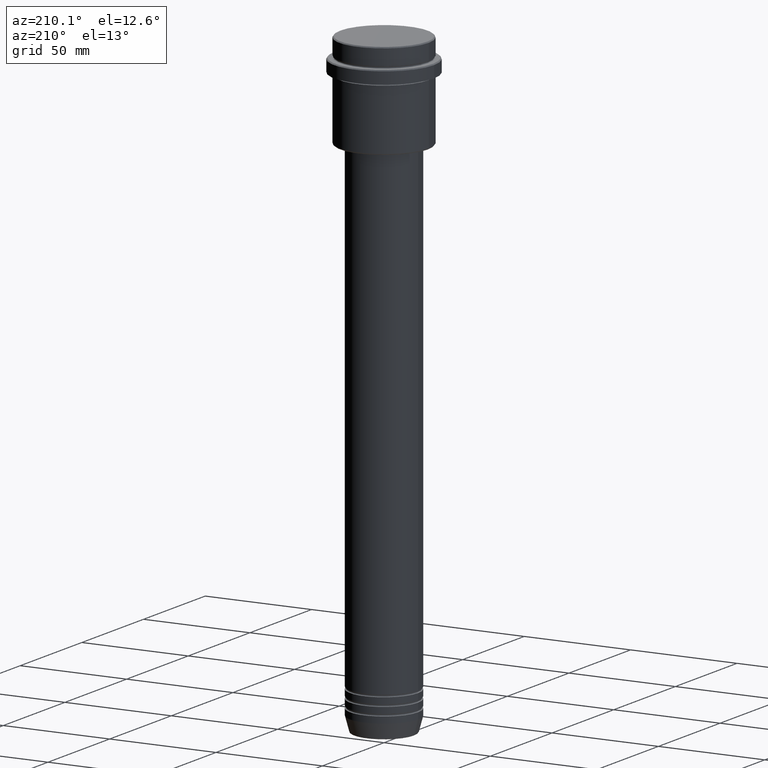
[diagram: clean part render]
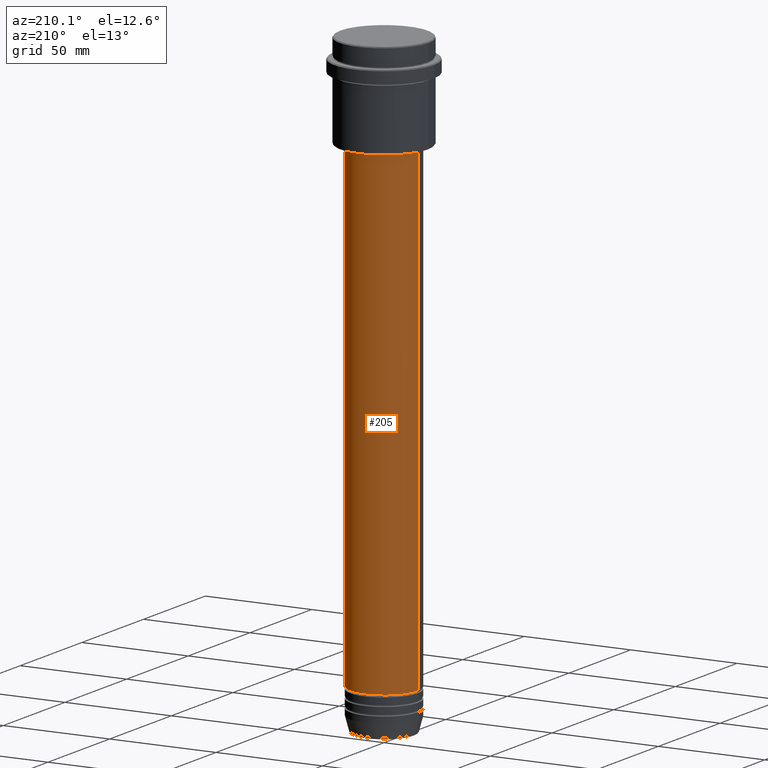
[diagram: same view with one face highlighted and labeled with its STEP entity id]
A machine part, auxiliary view. The second image highlights one B-rep face of the part: STEP entity #205.
In plain terms, the highlighted cylindrical surface (partial cylindrical patch) has radius 16 mm, axis along (-0, -0, 1).
Its self-contained STEP definition (entity closure, byte-faithful):
#28 = CARTESIAN_POINT ( 'NONE',  ( -16.00000000000000000, 1.959434878635765131E-15, -270.9999999999998863 ) ) ;
#30 = EDGE_CURVE ( 'NONE', #1137, #37, #1385, .T. ) ;
#37 = VERTEX_POINT ( 'NONE', #1048 ) ;
#49 = DIRECTION ( 'NONE',  ( 1.000000000000000000, 0.000000000000000000, 0.000000000000000000 ) ) ;
#175 = EDGE_CURVE ( 'NONE', #1367, #675, #796, .T. ) ;
#205 = ADVANCED_FACE ( 'NONE', ( #432 ), #589, .T. ) ;
#217 = CARTESIAN_POINT ( 'NONE',  ( 16.00000000000000000, 0.000000000000000000, -270.9999999999998863 ) ) ;
#236 = VECTOR ( 'NONE', #1406, 1000.000000000000000 ) ;
#237 = CIRCLE ( 'NONE', #280, 16.00000000000000355 ) ;
#258 = DIRECTION ( 'NONE',  ( -0.000000000000000000, -0.000000000000000000, 1.000000000000000000 ) ) ;
#280 = AXIS2_PLACEMENT_3D ( 'NONE', #762, #430, #1206 ) ;
#286 = CIRCLE ( 'NONE', #726, 16.00000000000000000 ) ;
#426 = CARTESIAN_POINT ( 'NONE',  ( 0.000000000000000000, 0.000000000000000000, -270.9999999999998863 ) ) ;
#430 = DIRECTION ( 'NONE',  ( -0.000000000000000000, -0.000000000000000000, 1.000000000000000000 ) ) ;
#432 = FACE_OUTER_BOUND ( 'NONE', #698, .T. ) ;
#446 = EDGE_CURVE ( 'NONE', #675, #37, #237, .T. ) ;
#524 = CARTESIAN_POINT ( 'NONE',  ( -16.00000000000000000, 1.959434878635765131E-15, 0.000000000000000000 ) ) ;
#541 = CARTESIAN_POINT ( 'NONE',  ( 16.00000000000000000, 0.000000000000000000, 0.000000000000000000 ) ) ;
#542 = DIRECTION ( 'NONE',  ( 1.000000000000000000, 0.000000000000000000, 0.000000000000000000 ) ) ;
#589 = CYLINDRICAL_SURFACE ( 'NONE', #1401, 16.00000000000000000 ) ;
#675 = VERTEX_POINT ( 'NONE', #795 ) ;
#698 = EDGE_LOOP ( 'NONE', ( #1277, #1114, #1210, #1136 ) ) ;
#726 = AXIS2_PLACEMENT_3D ( 'NONE', #426, #758, #542 ) ;
#758 = DIRECTION ( 'NONE',  ( -0.000000000000000000, -0.000000000000000000, 1.000000000000000000 ) ) ;
#762 = CARTESIAN_POINT ( 'NONE',  ( 0.000000000000000000, 0.000000000000000000, -46.00000000000009948 ) ) ;
#764 = DIRECTION ( 'NONE',  ( -0.000000000000000000, -0.000000000000000000, 1.000000000000000000 ) ) ;
#795 = CARTESIAN_POINT ( 'NONE',  ( 16.00000000000000355, 0.000000000000000000, -46.00000000000009948 ) ) ;
#796 = LINE ( 'NONE', #541, #1334 ) ;
#1048 = CARTESIAN_POINT ( 'NONE',  ( -16.00000000000000355, 1.959434878635765526E-15, -46.00000000000009948 ) ) ;
#1114 = ORIENTED_EDGE ( 'NONE', *, *, #30, .T. ) ;
#1125 = CARTESIAN_POINT ( 'NONE',  ( 0.000000000000000000, 0.000000000000000000, 0.000000000000000000 ) ) ;
#1136 = ORIENTED_EDGE ( 'NONE', *, *, #175, .F. ) ;
#1137 = VERTEX_POINT ( 'NONE', #28 ) ;
#1206 = DIRECTION ( 'NONE',  ( 1.000000000000000000, 0.000000000000000000, 0.000000000000000000 ) ) ;
#1210 = ORIENTED_EDGE ( 'NONE', *, *, #446, .F. ) ;
#1277 = ORIENTED_EDGE ( 'NONE', *, *, #1366, .T. ) ;
#1334 = VECTOR ( 'NONE', #258, 1000.000000000000000 ) ;
#1366 = EDGE_CURVE ( 'NONE', #1367, #1137, #286, .T. ) ;
#1367 = VERTEX_POINT ( 'NONE', #217 ) ;
#1385 = LINE ( 'NONE', #524, #236 ) ;
#1401 = AXIS2_PLACEMENT_3D ( 'NONE', #1125, #764, #49 ) ;
#1406 = DIRECTION ( 'NONE',  ( -0.000000000000000000, -0.000000000000000000, 1.000000000000000000 ) ) ;